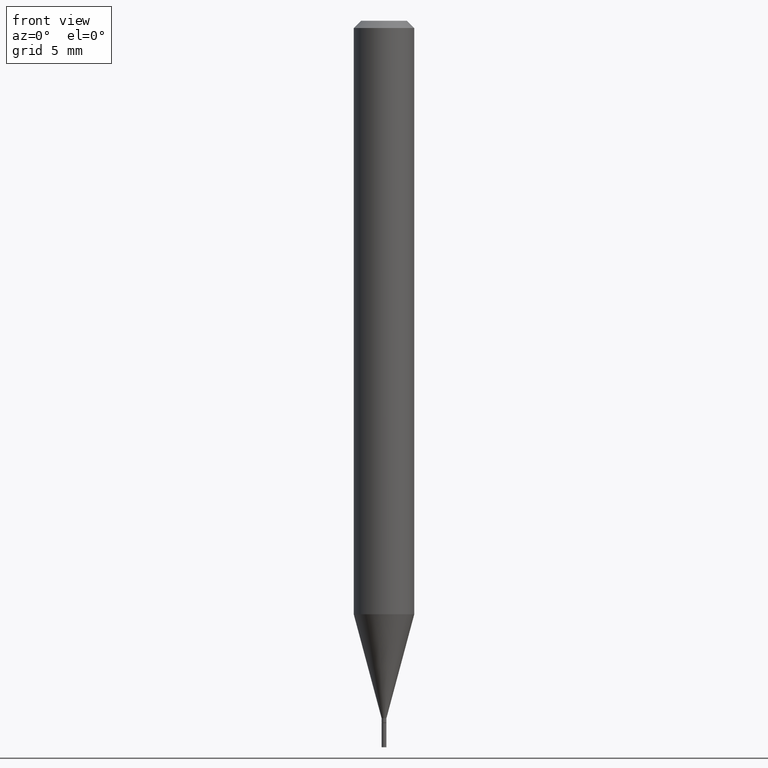
[diagram: clean part render]
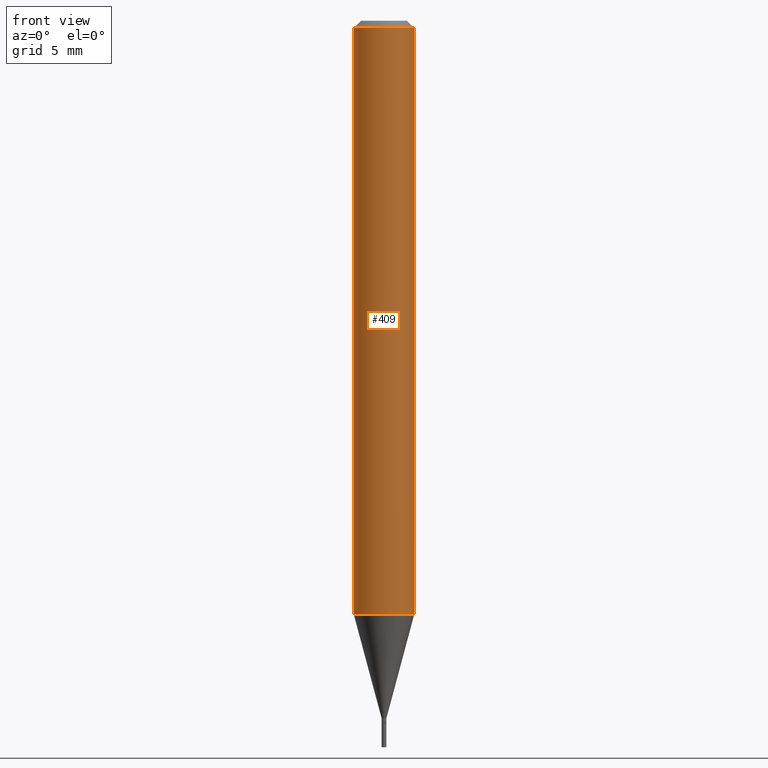
[diagram: same view with one face highlighted and labeled with its STEP entity id]
A machine part, front view. The second image highlights one B-rep face of the part: STEP entity #409.
In plain terms, the highlighted cylindrical surface (edge-blend (fillet) strip) has radius 1.5875 mm, axis along (-0, 0, 1).
Its self-contained STEP definition (entity closure, byte-faithful):
#2 = VERTEX_POINT ( 'NONE', #139 ) ;
#29 = EDGE_LOOP ( 'NONE', ( #168, #105, #425, #57 ) ) ;
#34 = VERTEX_POINT ( 'NONE', #142 ) ;
#42 = LINE ( 'NONE', #366, #246 ) ;
#52 = DIRECTION ( 'NONE',  ( -2.445468806185136597E-29, 3.491481338843145583E-15, 1.000000000000000000 ) ) ;
#55 = VERTEX_POINT ( 'NONE', #121 ) ;
#57 = ORIENTED_EDGE ( 'NONE', *, *, #124, .F. ) ;
#83 = CARTESIAN_POINT ( 'NONE',  ( 0.000000000000000000, 0.000000000000000000, 0.000000000000000000 ) ) ;
#86 = FACE_OUTER_BOUND ( 'NONE', #29, .T. ) ;
#98 = VERTEX_POINT ( 'NONE', #439 ) ;
#105 = ORIENTED_EDGE ( 'NONE', *, *, #238, .T. ) ;
#114 = CARTESIAN_POINT ( 'NONE',  ( 3.668203209277705088E-31, -5.237222008264718399E-17, -0.01499999999999999944 ) ) ;
#115 = DIRECTION ( 'NONE',  ( -2.445468806185136877E-29, 3.491481338843145188E-15, 1.000000000000000000 ) ) ;
#121 = CARTESIAN_POINT ( 'NONE',  ( 0.06250000000000000000, -4.888073874380388472E-16, -0.01499999999999999944 ) ) ;
#124 = EDGE_CURVE ( 'NONE', #34, #55, #422, .T. ) ;
#127 = AXIS2_PLACEMENT_3D ( 'NONE', #150, #402, #283 ) ;
#139 = CARTESIAN_POINT ( 'NONE',  ( 0.06250000000000000000, -4.714921114650650089E-15, -1.225407078564789254 ) ) ;
#142 = CARTESIAN_POINT ( 'NONE',  ( -0.06250000000000000000, -1.721339873838890133E-15, -0.01499999999999999944 ) ) ;
#150 = CARTESIAN_POINT ( 'NONE',  ( 2.996694785508651364E-29, -4.278485947295258420E-15, -1.225407078564789254 ) ) ;
#168 = ORIENTED_EDGE ( 'NONE', *, *, #188, .F. ) ;
#175 = CARTESIAN_POINT ( 'NONE',  ( -0.06250000000000000000, 4.440892098500626162E-16, -3.074334431409316114E-30 ) ) ;
#188 = EDGE_CURVE ( 'NONE', #98, #34, #217, .T. ) ;
#211 = EDGE_CURVE ( 'NONE', #2, #55, #42, .T. ) ;
#217 = LINE ( 'NONE', #175, #219 ) ;
#219 = VECTOR ( 'NONE', #401, 39.37007874015748143 ) ;
#232 = CYLINDRICAL_SURFACE ( 'NONE', #256, 0.06250000000000000000 ) ;
#238 = EDGE_CURVE ( 'NONE', #98, #2, #400, .T. ) ;
#246 = VECTOR ( 'NONE', #115, 39.37007874015748143 ) ;
#256 = AXIS2_PLACEMENT_3D ( 'NONE', #83, #52, #371 ) ;
#283 = DIRECTION ( 'NONE',  ( 1.000000000000000000, -6.982962677686262766E-15, 0.000000000000000000 ) ) ;
#286 = DIRECTION ( 'NONE',  ( -2.445468806185136597E-29, 3.491481338843145583E-15, 1.000000000000000000 ) ) ;
#327 = DIRECTION ( 'NONE',  ( 1.000000000000000000, -6.982962677686266711E-15, 0.000000000000000000 ) ) ;
#366 = CARTESIAN_POINT ( 'NONE',  ( 0.06250000000000000000, -4.364351673553916694E-16, 3.047610484872459871E-30 ) ) ;
#371 = DIRECTION ( 'NONE',  ( 1.000000000000000000, -6.982962677686266711E-15, 4.876176775795935793E-29 ) ) ;
#400 = CIRCLE ( 'NONE', #127, 0.06250000000000000000 ) ;
#401 = DIRECTION ( 'NONE',  ( -2.445468806185136877E-29, 3.491481338843145188E-15, 1.000000000000000000 ) ) ;
#402 = DIRECTION ( 'NONE',  ( -2.445468806185136597E-29, 3.491481338843145583E-15, 1.000000000000000000 ) ) ;
#409 = ADVANCED_FACE ( 'NONE', ( #86 ), #232, .T. ) ;
#422 = CIRCLE ( 'NONE', #447, 0.06250000000000000000 ) ;
#425 = ORIENTED_EDGE ( 'NONE', *, *, #211, .T. ) ;
#439 = CARTESIAN_POINT ( 'NONE',  ( -0.06250000000000000000, -3.834396737445195804E-15, -1.225407078564789254 ) ) ;
#447 = AXIS2_PLACEMENT_3D ( 'NONE', #114, #286, #327 ) ;